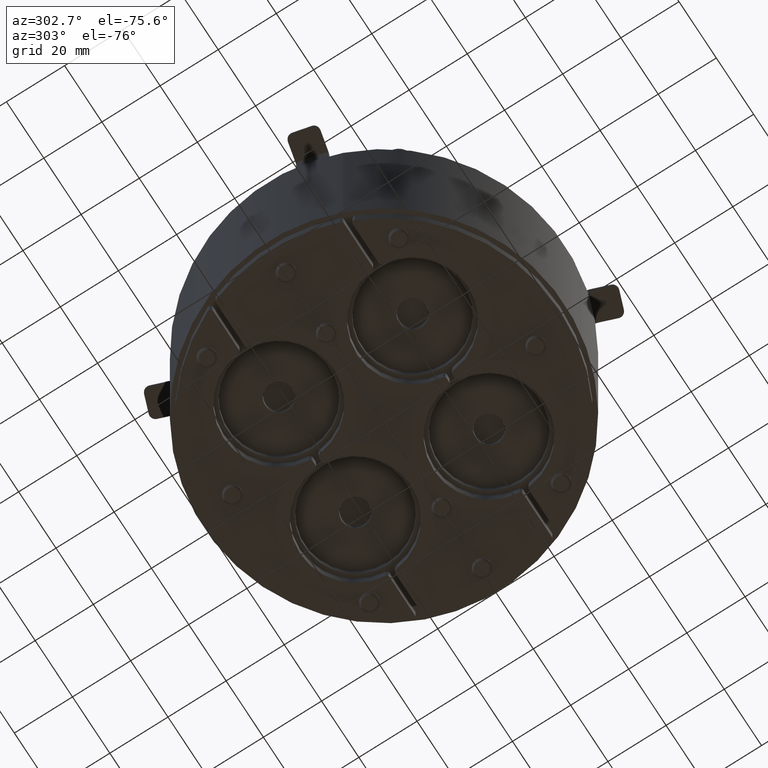
[diagram: clean part render]
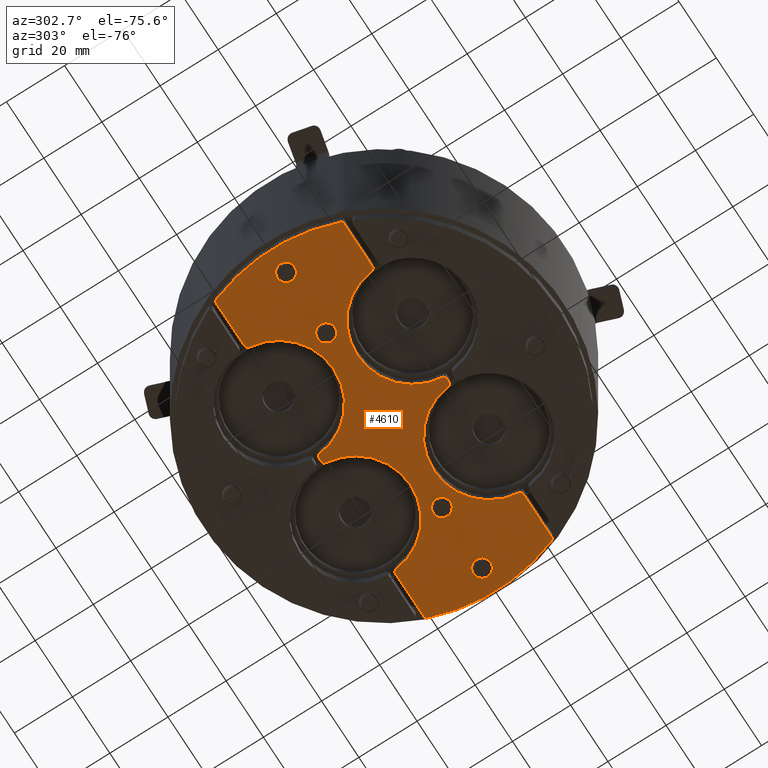
[diagram: same view with one face highlighted and labeled with its STEP entity id]
A machine part, auxiliary view. The second image highlights one B-rep face of the part: STEP entity #4610.
In plain terms, the highlighted planar face has unit normal (0, -0, 1).
Its self-contained STEP definition (entity closure, byte-faithful):
#355=FACE_BOUND('',#846,.T.);
#356=FACE_BOUND('',#847,.T.);
#357=FACE_BOUND('',#848,.T.);
#358=FACE_BOUND('',#849,.T.);
#402=PLANE('',#5199);
#565=FACE_OUTER_BOUND('',#845,.T.);
#845=EDGE_LOOP('',(#3351,#3352,#3353,#3354,#3355,#3356,#3357,#3358,#3359,
#3360,#3361,#3362,#3363,#3364,#3365,#3366,#3367,#3368,#3369,#3370,#3371,
#3372,#3373,#3374));
#846=EDGE_LOOP('',(#3375));
#847=EDGE_LOOP('',(#3376));
#848=EDGE_LOOP('',(#3377));
#849=EDGE_LOOP('',(#3378));
#1165=LINE('',#7430,#1532);
#1168=LINE('',#7440,#1535);
#1169=LINE('',#7448,#1536);
#1170=LINE('',#7456,#1537);
#1171=LINE('',#7464,#1538);
#1172=LINE('',#7472,#1539);
#1532=VECTOR('',#5909,10.);
#1535=VECTOR('',#5918,10.);
#1536=VECTOR('',#5925,10.);
#1537=VECTOR('',#5932,10.);
#1538=VECTOR('',#5939,10.);
#1539=VECTOR('',#5946,10.);
#1902=CIRCLE('',#5197,1.);
#1903=CIRCLE('',#5200,60.5);
#1904=CIRCLE('',#5201,1.);
#1905=CIRCLE('',#5202,1.);
#1906=CIRCLE('',#5203,19.);
#1907=CIRCLE('',#5204,1.);
#1908=CIRCLE('',#5205,1.);
#1909=CIRCLE('',#5206,19.);
#1910=CIRCLE('',#5207,1.);
#1911=CIRCLE('',#5208,1.);
#1912=CIRCLE('',#5209,60.5);
#1913=CIRCLE('',#5210,1.);
#1914=CIRCLE('',#5211,1.);
#1915=CIRCLE('',#5212,19.);
#1916=CIRCLE('',#5213,1.);
#1917=CIRCLE('',#5214,1.);
#1918=CIRCLE('',#5215,19.);
#1919=CIRCLE('',#5216,1.);
#1920=CIRCLE('',#5217,2.4585);
#1921=CIRCLE('',#5218,2.4585);
#1922=CIRCLE('',#5219,2.4585);
#1923=CIRCLE('',#5220,2.4585);
#2177=VERTEX_POINT('',#7423);
#2178=VERTEX_POINT('',#7425);
#2179=VERTEX_POINT('',#7429);
#2181=VERTEX_POINT('',#7435);
#2182=VERTEX_POINT('',#7437);
#2183=VERTEX_POINT('',#7439);
#2184=VERTEX_POINT('',#7441);
#2185=VERTEX_POINT('',#7443);
#2186=VERTEX_POINT('',#7445);
#2187=VERTEX_POINT('',#7447);
#2188=VERTEX_POINT('',#7449);
#2189=VERTEX_POINT('',#7451);
#2190=VERTEX_POINT('',#7453);
#2191=VERTEX_POINT('',#7455);
#2192=VERTEX_POINT('',#7457);
#2193=VERTEX_POINT('',#7459);
#2194=VERTEX_POINT('',#7461);
#2195=VERTEX_POINT('',#7463);
#2196=VERTEX_POINT('',#7465);
#2197=VERTEX_POINT('',#7467);
#2198=VERTEX_POINT('',#7469);
#2199=VERTEX_POINT('',#7471);
#2200=VERTEX_POINT('',#7473);
#2201=VERTEX_POINT('',#7475);
#2202=VERTEX_POINT('',#7478);
#2203=VERTEX_POINT('',#7480);
#2204=VERTEX_POINT('',#7482);
#2205=VERTEX_POINT('',#7484);
#2623=EDGE_CURVE('',#2177,#2178,#1902,.T.);
#2625=EDGE_CURVE('',#2178,#2179,#1165,.F.);
#2628=EDGE_CURVE('',#2181,#2177,#1903,.F.);
#2629=EDGE_CURVE('',#2182,#2181,#1904,.T.);
#2630=EDGE_CURVE('',#2183,#2182,#1168,.F.);
#2631=EDGE_CURVE('',#2184,#2183,#1905,.T.);
#2632=EDGE_CURVE('',#2185,#2184,#1906,.F.);
#2633=EDGE_CURVE('',#2186,#2185,#1907,.T.);
#2634=EDGE_CURVE('',#2187,#2186,#1169,.F.);
#2635=EDGE_CURVE('',#2188,#2187,#1908,.T.);
#2636=EDGE_CURVE('',#2189,#2188,#1909,.F.);
#2637=EDGE_CURVE('',#2190,#2189,#1910,.T.);
#2638=EDGE_CURVE('',#2191,#2190,#1170,.F.);
#2639=EDGE_CURVE('',#2192,#2191,#1911,.T.);
#2640=EDGE_CURVE('',#2193,#2192,#1912,.F.);
#2641=EDGE_CURVE('',#2194,#2193,#1913,.T.);
#2642=EDGE_CURVE('',#2195,#2194,#1171,.F.);
#2643=EDGE_CURVE('',#2196,#2195,#1914,.T.);
#2644=EDGE_CURVE('',#2197,#2196,#1915,.F.);
#2645=EDGE_CURVE('',#2198,#2197,#1916,.T.);
#2646=EDGE_CURVE('',#2199,#2198,#1172,.F.);
#2647=EDGE_CURVE('',#2200,#2199,#1917,.T.);
#2648=EDGE_CURVE('',#2201,#2200,#1918,.F.);
#2649=EDGE_CURVE('',#2179,#2201,#1919,.T.);
#2650=EDGE_CURVE('',#2202,#2202,#1920,.T.);
#2651=EDGE_CURVE('',#2203,#2203,#1921,.T.);
#2652=EDGE_CURVE('',#2204,#2204,#1922,.T.);
#2653=EDGE_CURVE('',#2205,#2205,#1923,.T.);
#3351=ORIENTED_EDGE('',*,*,#2623,.F.);
#3352=ORIENTED_EDGE('',*,*,#2628,.F.);
#3353=ORIENTED_EDGE('',*,*,#2629,.F.);
#3354=ORIENTED_EDGE('',*,*,#2630,.F.);
#3355=ORIENTED_EDGE('',*,*,#2631,.F.);
#3356=ORIENTED_EDGE('',*,*,#2632,.F.);
#3357=ORIENTED_EDGE('',*,*,#2633,.F.);
#3358=ORIENTED_EDGE('',*,*,#2634,.F.);
#3359=ORIENTED_EDGE('',*,*,#2635,.F.);
#3360=ORIENTED_EDGE('',*,*,#2636,.F.);
#3361=ORIENTED_EDGE('',*,*,#2637,.F.);
#3362=ORIENTED_EDGE('',*,*,#2638,.F.);
#3363=ORIENTED_EDGE('',*,*,#2639,.F.);
#3364=ORIENTED_EDGE('',*,*,#2640,.F.);
#3365=ORIENTED_EDGE('',*,*,#2641,.F.);
#3366=ORIENTED_EDGE('',*,*,#2642,.F.);
#3367=ORIENTED_EDGE('',*,*,#2643,.F.);
#3368=ORIENTED_EDGE('',*,*,#2644,.F.);
#3369=ORIENTED_EDGE('',*,*,#2645,.F.);
#3370=ORIENTED_EDGE('',*,*,#2646,.F.);
#3371=ORIENTED_EDGE('',*,*,#2647,.F.);
#3372=ORIENTED_EDGE('',*,*,#2648,.F.);
#3373=ORIENTED_EDGE('',*,*,#2649,.F.);
#3374=ORIENTED_EDGE('',*,*,#2625,.F.);
#3375=ORIENTED_EDGE('',*,*,#2650,.T.);
#3376=ORIENTED_EDGE('',*,*,#2651,.T.);
#3377=ORIENTED_EDGE('',*,*,#2652,.T.);
#3378=ORIENTED_EDGE('',*,*,#2653,.T.);
#4610=ADVANCED_FACE('',(#565,#355,#356,#357,#358),#402,.F.);
#5197=AXIS2_PLACEMENT_3D('',#7426,#5904,#5905);
#5199=AXIS2_PLACEMENT_3D('',#7434,#5912,#5913);
#5200=AXIS2_PLACEMENT_3D('',#7436,#5914,#5915);
#5201=AXIS2_PLACEMENT_3D('',#7438,#5916,#5917);
#5202=AXIS2_PLACEMENT_3D('',#7442,#5919,#5920);
#5203=AXIS2_PLACEMENT_3D('',#7444,#5921,#5922);
#5204=AXIS2_PLACEMENT_3D('',#7446,#5923,#5924);
#5205=AXIS2_PLACEMENT_3D('',#7450,#5926,#5927);
#5206=AXIS2_PLACEMENT_3D('',#7452,#5928,#5929);
#5207=AXIS2_PLACEMENT_3D('',#7454,#5930,#5931);
#5208=AXIS2_PLACEMENT_3D('',#7458,#5933,#5934);
#5209=AXIS2_PLACEMENT_3D('',#7460,#5935,#5936);
#5210=AXIS2_PLACEMENT_3D('',#7462,#5937,#5938);
#5211=AXIS2_PLACEMENT_3D('',#7466,#5940,#5941);
#5212=AXIS2_PLACEMENT_3D('',#7468,#5942,#5943);
#5213=AXIS2_PLACEMENT_3D('',#7470,#5944,#5945);
#5214=AXIS2_PLACEMENT_3D('',#7474,#5947,#5948);
#5215=AXIS2_PLACEMENT_3D('',#7476,#5949,#5950);
#5216=AXIS2_PLACEMENT_3D('',#7477,#5951,#5952);
#5217=AXIS2_PLACEMENT_3D('',#7479,#5953,#5954);
#5218=AXIS2_PLACEMENT_3D('',#7481,#5955,#5956);
#5219=AXIS2_PLACEMENT_3D('',#7483,#5957,#5958);
#5220=AXIS2_PLACEMENT_3D('',#7485,#5959,#5960);
#5904=DIRECTION('center_axis',(0.,0.,1.));
#5905=DIRECTION('ref_axis',(0.568796458994528,0.822478320829969,0.));
#5909=DIRECTION('',(1.,0.,0.));
#5912=DIRECTION('center_axis',(0.,0.,1.));
#5913=DIRECTION('ref_axis',(1.,0.,0.));
#5914=DIRECTION('center_axis',(0.,0.,-1.));
#5915=DIRECTION('ref_axis',(1.,0.,0.));
#5916=DIRECTION('center_axis',(0.,0.,1.));
#5917=DIRECTION('ref_axis',(0.568796458994528,-0.822478320829969,0.));
#5918=DIRECTION('',(-1.,0.,0.));
#5919=DIRECTION('center_axis',(0.,0.,1.));
#5920=DIRECTION('ref_axis',(-0.670820393249934,-0.741619848709569,0.));
#5921=DIRECTION('center_axis',(0.,0.,1.));
#5922=DIRECTION('ref_axis',(-1.,0.,0.));
#5923=DIRECTION('center_axis',(0.,0.,1.));
#5924=DIRECTION('ref_axis',(0.670820393249935,-0.741619848709568,0.));
#5925=DIRECTION('',(-1.,0.,0.));
#5926=DIRECTION('center_axis',(0.,0.,1.));
#5927=DIRECTION('ref_axis',(-0.670820393249935,-0.741619848709568,0.));
#5928=DIRECTION('center_axis',(0.,0.,1.));
#5929=DIRECTION('ref_axis',(-1.,0.,0.));
#5930=DIRECTION('center_axis',(0.,0.,1.));
#5931=DIRECTION('ref_axis',(0.670820393249934,-0.741619848709569,0.));
#5932=DIRECTION('',(-1.,0.,0.));
#5933=DIRECTION('center_axis',(0.,0.,1.));
#5934=DIRECTION('ref_axis',(-0.568796458994528,-0.822478320829969,0.));
#5935=DIRECTION('center_axis',(0.,0.,-1.));
#5936=DIRECTION('ref_axis',(1.,0.,0.));
#5937=DIRECTION('center_axis',(0.,0.,1.));
#5938=DIRECTION('ref_axis',(-0.568796458994528,0.822478320829969,0.));
#5939=DIRECTION('',(1.,0.,0.));
#5940=DIRECTION('center_axis',(0.,0.,1.));
#5941=DIRECTION('ref_axis',(0.670820393249934,0.741619848709569,0.));
#5942=DIRECTION('center_axis',(0.,0.,1.));
#5943=DIRECTION('ref_axis',(-1.,0.,0.));
#5944=DIRECTION('center_axis',(0.,0.,1.));
#5945=DIRECTION('ref_axis',(-0.670820393249935,0.741619848709568,0.));
#5946=DIRECTION('',(1.,0.,0.));
#5947=DIRECTION('center_axis',(0.,0.,1.));
#5948=DIRECTION('ref_axis',(0.670820393249935,0.741619848709568,0.));
#5949=DIRECTION('center_axis',(0.,0.,1.));
#5950=DIRECTION('ref_axis',(-1.,0.,0.));
#5951=DIRECTION('center_axis',(0.,0.,1.));
#5952=DIRECTION('ref_axis',(-0.670820393249934,0.741619848709569,0.));
#5953=DIRECTION('center_axis',(0.,0.,1.));
#5954=DIRECTION('ref_axis',(1.,0.,0.));
#5955=DIRECTION('center_axis',(0.,0.,1.));
#5956=DIRECTION('ref_axis',(1.,0.,0.));
#5957=DIRECTION('center_axis',(0.,0.,1.));
#5958=DIRECTION('ref_axis',(1.,0.,0.));
#5959=DIRECTION('center_axis',(0.,0.,1.));
#5960=DIRECTION('ref_axis',(1.,0.,0.));
#7423=CARTESIAN_POINT('',(56.6065535350297,21.3529411764706,0.));
#7425=CARTESIAN_POINT('',(55.670908022054,22.,0.));
#7426=CARTESIAN_POINT('Origin',(55.670908022054,21.,0.));
#7429=CARTESIAN_POINT('',(40.3997487421324,22.,0.));
#7430=CARTESIAN_POINT('',(28.7880183409696,22.,0.));
#7434=CARTESIAN_POINT('Origin',(-3.27009837789638E-15,-2.86133608065934E-15,
0.));
#7435=CARTESIAN_POINT('',(56.6065535350297,-21.3529411764706,0.));
#7436=CARTESIAN_POINT('Origin',(0.,0.,0.));
#7437=CARTESIAN_POINT('',(55.670908022054,-22.,0.));
#7438=CARTESIAN_POINT('Origin',(55.670908022054,-21.,0.));
#7439=CARTESIAN_POINT('',(40.3997487421324,-22.,0.));
#7440=CARTESIAN_POINT('',(19.,-22.,0.));
#7441=CARTESIAN_POINT('',(39.4047613050258,-21.1,0.));
#7442=CARTESIAN_POINT('Origin',(40.3997487421324,-21.,0.));
#7443=CARTESIAN_POINT('',(1.59523869497423,-21.1,0.));
#7444=CARTESIAN_POINT('Origin',(20.5,-23.,0.));
#7445=CARTESIAN_POINT('',(0.60025125786761,-22.,0.));
#7446=CARTESIAN_POINT('Origin',(0.60025125786761,-21.,0.));
#7447=CARTESIAN_POINT('',(-0.600251257867601,-22.,0.));
#7448=CARTESIAN_POINT('',(-1.5,-22.,0.));
#7449=CARTESIAN_POINT('',(-1.59523869497422,-21.1,0.));
#7450=CARTESIAN_POINT('Origin',(-0.600251257867601,-21.,0.));
#7451=CARTESIAN_POINT('',(-39.4047613050258,-21.1,0.));
#7452=CARTESIAN_POINT('Origin',(-20.5,-23.,0.));
#7453=CARTESIAN_POINT('',(-40.3997487421324,-22.,0.));
#7454=CARTESIAN_POINT('Origin',(-40.3997487421324,-21.,0.));
#7455=CARTESIAN_POINT('',(-55.670908022054,-22.,0.));
#7456=CARTESIAN_POINT('',(-28.7880183409696,-22.,0.));
#7457=CARTESIAN_POINT('',(-56.6065535350297,-21.3529411764706,0.));
#7458=CARTESIAN_POINT('Origin',(-55.670908022054,-21.,0.));
#7459=CARTESIAN_POINT('',(-56.6065535350297,21.3529411764706,0.));
#7460=CARTESIAN_POINT('Origin',(0.,0.,0.));
#7461=CARTESIAN_POINT('',(-55.670908022054,22.,0.));
#7462=CARTESIAN_POINT('Origin',(-55.670908022054,21.,0.));
#7463=CARTESIAN_POINT('',(-40.3997487421324,22.,0.));
#7464=CARTESIAN_POINT('',(-19.,22.,0.));
#7465=CARTESIAN_POINT('',(-39.4047613050258,21.1,0.));
#7466=CARTESIAN_POINT('Origin',(-40.3997487421324,21.,0.));
#7467=CARTESIAN_POINT('',(-1.59523869497422,21.1,0.));
#7468=CARTESIAN_POINT('Origin',(-20.5,23.,0.));
#7469=CARTESIAN_POINT('',(-0.600251257867601,22.,0.));
#7470=CARTESIAN_POINT('Origin',(-0.600251257867601,21.,0.));
#7471=CARTESIAN_POINT('',(0.60025125786761,22.,0.));
#7472=CARTESIAN_POINT('',(1.5,22.,0.));
#7473=CARTESIAN_POINT('',(1.59523869497423,21.1,0.));
#7474=CARTESIAN_POINT('Origin',(0.60025125786761,21.,0.));
#7475=CARTESIAN_POINT('',(39.4047613050258,21.1,0.));
#7476=CARTESIAN_POINT('Origin',(20.5,23.,0.));
#7477=CARTESIAN_POINT('Origin',(40.3997487421324,21.,0.));
#7478=CARTESIAN_POINT('',(-54.9585,-2.02850938588232E-14,0.));
#7479=CARTESIAN_POINT('Origin',(-52.5,-1.99840144432528E-14,0.));
#7480=CARTESIAN_POINT('',(28.5415,-4.81482616411819E-15,0.));
#7481=CARTESIAN_POINT('Origin',(31.,-4.51374674854782E-15,0.));
#7482=CARTESIAN_POINT('',(50.0415,-3.02335068662144E-14,0.));
#7483=CARTESIAN_POINT('Origin',(52.5,-2.9932427450644E-14,0.));
#7484=CARTESIAN_POINT('',(-33.4585,-3.01079415570377E-16,0.));
#7485=CARTESIAN_POINT('Origin',(-31.,0.,0.));